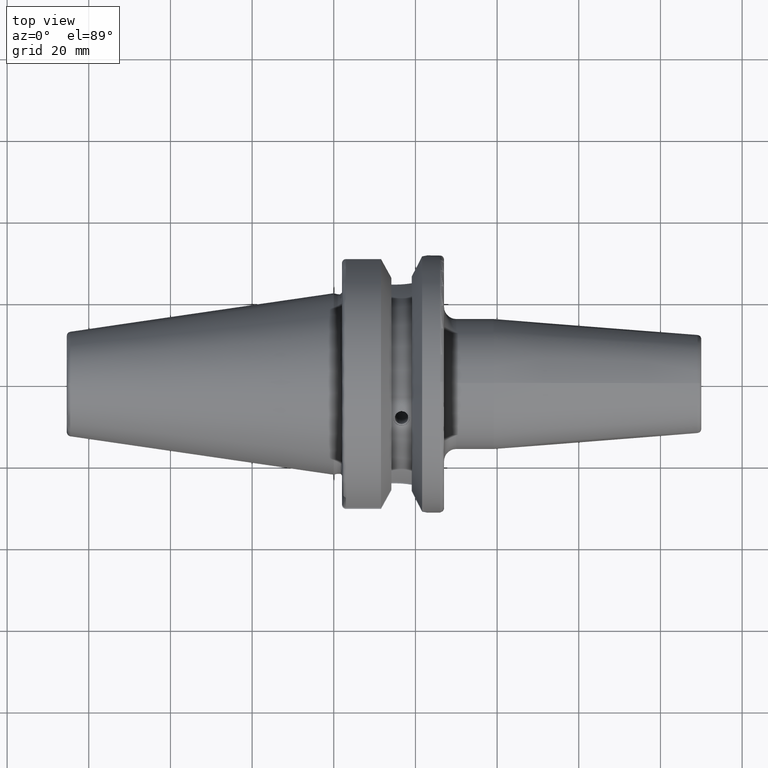
[diagram: clean part render]
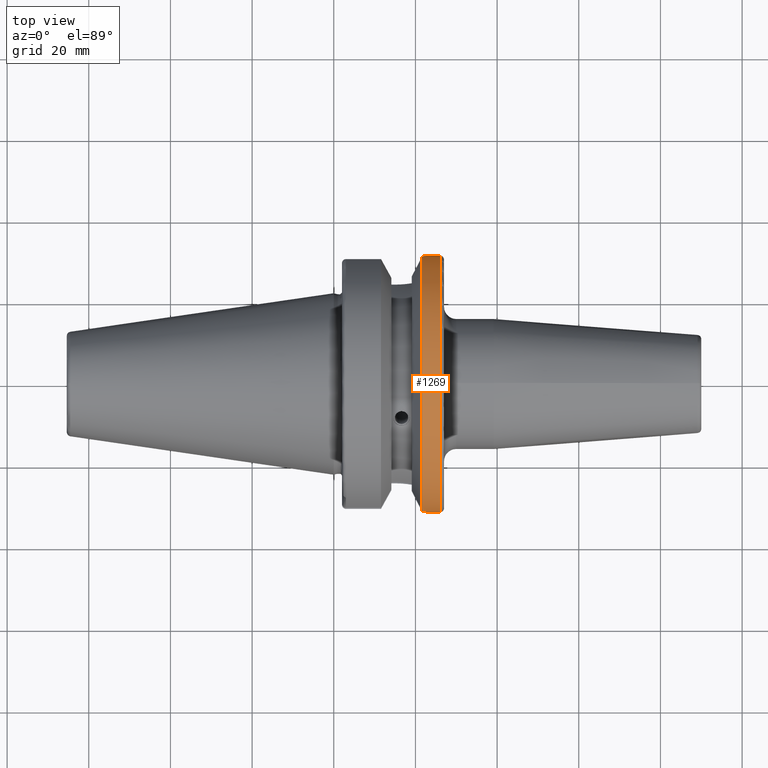
[diagram: same view with one face highlighted and labeled with its STEP entity id]
A machine part, top view. The second image highlights one B-rep face of the part: STEP entity #1269.
In plain terms, the highlighted cylindrical surface (bore or boss wall) has radius 31.5 mm, axis along (1, 0, 0).
Its self-contained STEP definition (entity closure, byte-faithful):
#32=B_SPLINE_CURVE_WITH_KNOTS('',3,(#2257,#2258,#2259,#2260,#2261,#2262),
 .UNSPECIFIED.,.F.,.F.,(4,2,4),(1.21877751840372,1.52344857393281,1.67526011710938),
 .UNSPECIFIED.);
#33=B_SPLINE_CURVE_WITH_KNOTS('',3,(#2264,#2265,#2266,#2267,#2268,#2269),
 .UNSPECIFIED.,.F.,.F.,(4,2,4),(0.762294919698051,0.914106462874623,1.21877751840372),
 .UNSPECIFIED.);
#38=B_SPLINE_CURVE_WITH_KNOTS('',3,(#2351,#2352,#2353,#2354,#2355,#2356,
#2357,#2358,#2359,#2360),.UNSPECIFIED.,.F.,.F.,(4,2,2,2,4),(3.19984995650548,
3.35166149968206,3.65633255521115,3.96100361074024,4.11281515391681),
 .UNSPECIFIED.);
#114=CYLINDRICAL_SURFACE('',#1426,31.5);
#181=FACE_OUTER_BOUND('',#269,.T.);
#269=EDGE_LOOP('',(#1037,#1038,#1039,#1040,#1041,#1042,#1043,#1044,#1045));
#346=CIRCLE('',#1427,31.5);
#347=CIRCLE('',#1428,31.5);
#348=CIRCLE('',#1429,31.5);
#349=CIRCLE('',#1430,31.5);
#427=LINE('',#2347,#493);
#493=VECTOR('',#1749,31.5);
#580=VERTEX_POINT('',#2249);
#581=VERTEX_POINT('',#2256);
#582=VERTEX_POINT('',#2263);
#600=VERTEX_POINT('',#2344);
#601=VERTEX_POINT('',#2345);
#602=VERTEX_POINT('',#2348);
#603=VERTEX_POINT('',#2350);
#735=EDGE_CURVE('',#581,#580,#32,.T.);
#736=EDGE_CURVE('',#582,#581,#33,.T.);
#758=EDGE_CURVE('',#600,#601,#346,.T.);
#759=EDGE_CURVE('',#600,#581,#427,.T.);
#760=EDGE_CURVE('',#580,#602,#347,.T.);
#761=EDGE_CURVE('',#602,#603,#38,.T.);
#762=EDGE_CURVE('',#603,#582,#348,.T.);
#763=EDGE_CURVE('',#601,#600,#349,.T.);
#1037=ORIENTED_EDGE('',*,*,#758,.F.);
#1038=ORIENTED_EDGE('',*,*,#759,.T.);
#1039=ORIENTED_EDGE('',*,*,#735,.T.);
#1040=ORIENTED_EDGE('',*,*,#760,.T.);
#1041=ORIENTED_EDGE('',*,*,#761,.T.);
#1042=ORIENTED_EDGE('',*,*,#762,.T.);
#1043=ORIENTED_EDGE('',*,*,#736,.T.);
#1044=ORIENTED_EDGE('',*,*,#759,.F.);
#1045=ORIENTED_EDGE('',*,*,#763,.F.);
#1269=ADVANCED_FACE('',(#181),#114,.T.);
#1426=AXIS2_PLACEMENT_3D('',#2343,#1745,#1746);
#1427=AXIS2_PLACEMENT_3D('',#2346,#1747,#1748);
#1428=AXIS2_PLACEMENT_3D('',#2349,#1750,#1751);
#1429=AXIS2_PLACEMENT_3D('',#2361,#1752,#1753);
#1430=AXIS2_PLACEMENT_3D('',#2362,#1754,#1755);
#1745=DIRECTION('center_axis',(1.,0.,0.));
#1746=DIRECTION('ref_axis',(0.,1.,0.));
#1747=DIRECTION('center_axis',(1.,0.,0.));
#1748=DIRECTION('ref_axis',(0.,0.,-1.));
#1749=DIRECTION('',(-1.,0.,0.));
#1750=DIRECTION('center_axis',(1.,0.,0.));
#1751=DIRECTION('ref_axis',(0.,0.,-1.));
#1752=DIRECTION('center_axis',(1.,0.,0.));
#1753=DIRECTION('ref_axis',(0.,0.,-1.));
#1754=DIRECTION('center_axis',(1.,0.,0.));
#1755=DIRECTION('ref_axis',(0.,0.,-1.));
#2249=CARTESIAN_POINT('',(21.6309636926618,-31.1782420264945,-4.4907932637046));
#2256=CARTESIAN_POINT('',(23.,-31.5,-1.51248507442265E-15));
#2257=CARTESIAN_POINT('Ctrl Pts',(23.,-31.5,8.32667268468867E-16));
#2258=CARTESIAN_POINT('Ctrl Pts',(23.,-31.5,-1.01557018509698));
#2259=CARTESIAN_POINT('Ctrl Pts',(22.7961189876535,-31.445974204441,-2.09580170425552));
#2260=CARTESIAN_POINT('Ctrl Pts',(22.1796133812044,-31.2997625705024,-3.58065358198869));
#2261=CARTESIAN_POINT('Ctrl Pts',(21.92482980253,-31.2412125047166,-4.05360796141051));
#2262=CARTESIAN_POINT('Ctrl Pts',(21.6309636926618,-31.1782420264945,-4.4907932637046));
#2263=CARTESIAN_POINT('',(21.6309636926618,-31.1782420264945,4.4907932637046));
#2264=CARTESIAN_POINT('Ctrl Pts',(21.6309636926618,-31.1782420264945,4.4907932637046));
#2265=CARTESIAN_POINT('Ctrl Pts',(21.92482980253,-31.2412125047166,4.05360796141051));
#2266=CARTESIAN_POINT('Ctrl Pts',(22.1796133812044,-31.2997625705024,3.58065358198869));
#2267=CARTESIAN_POINT('Ctrl Pts',(22.7961189876535,-31.445974204441,2.09580170425552));
#2268=CARTESIAN_POINT('Ctrl Pts',(23.,-31.5,1.01557018509698));
#2269=CARTESIAN_POINT('Ctrl Pts',(23.,-31.5,-2.77555756156289E-16));
#2343=CARTESIAN_POINT('Origin',(23.8154818463309,0.,0.));
#2344=CARTESIAN_POINT('',(26.,-31.5,-3.85763741731416E-15));
#2345=CARTESIAN_POINT('',(26.,-3.85763741731416E-15,31.5));
#2346=CARTESIAN_POINT('Origin',(26.,0.,0.));
#2347=CARTESIAN_POINT('',(23.8154818463309,-31.5,-3.85763741731416E-15));
#2348=CARTESIAN_POINT('',(21.6309636926618,31.1782420264945,-4.4907932637046));
#2349=CARTESIAN_POINT('Origin',(21.6309636926618,0.,0.));
#2350=CARTESIAN_POINT('',(21.6309636926618,31.1782420264945,4.4907932637046));
#2351=CARTESIAN_POINT('Ctrl Pts',(21.6309636926618,31.1782420264945,-4.4907932637046));
#2352=CARTESIAN_POINT('Ctrl Pts',(21.92482980253,31.2412125047166,-4.05360796141051));
#2353=CARTESIAN_POINT('Ctrl Pts',(22.1796133812044,31.2997625705024,-3.58065358198869));
#2354=CARTESIAN_POINT('Ctrl Pts',(22.7961189876535,31.445974204441,-2.09580170425552));
#2355=CARTESIAN_POINT('Ctrl Pts',(23.,31.5,-1.01557018509698));
#2356=CARTESIAN_POINT('Ctrl Pts',(23.,31.5,1.01557018509698));
#2357=CARTESIAN_POINT('Ctrl Pts',(22.7961189876535,31.445974204441,2.09580170425552));
#2358=CARTESIAN_POINT('Ctrl Pts',(22.1796133812044,31.2997625705024,3.58065358198869));
#2359=CARTESIAN_POINT('Ctrl Pts',(21.92482980253,31.2412125047166,4.05360796141051));
#2360=CARTESIAN_POINT('Ctrl Pts',(21.6309636926618,31.1782420264945,4.4907932637046));
#2361=CARTESIAN_POINT('Origin',(21.6309636926618,0.,0.));
#2362=CARTESIAN_POINT('Origin',(26.,0.,0.));